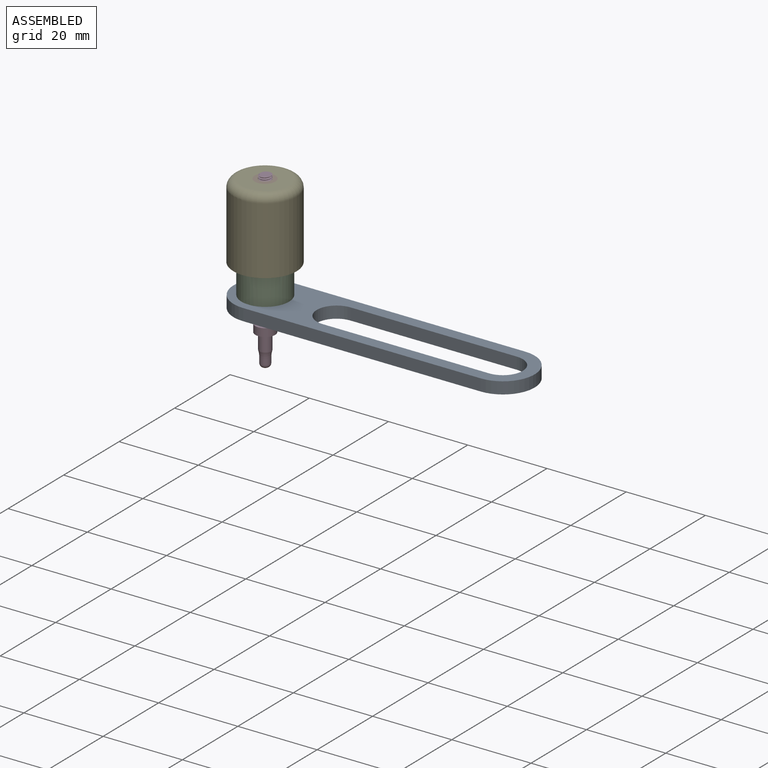
[diagram: assembled view]
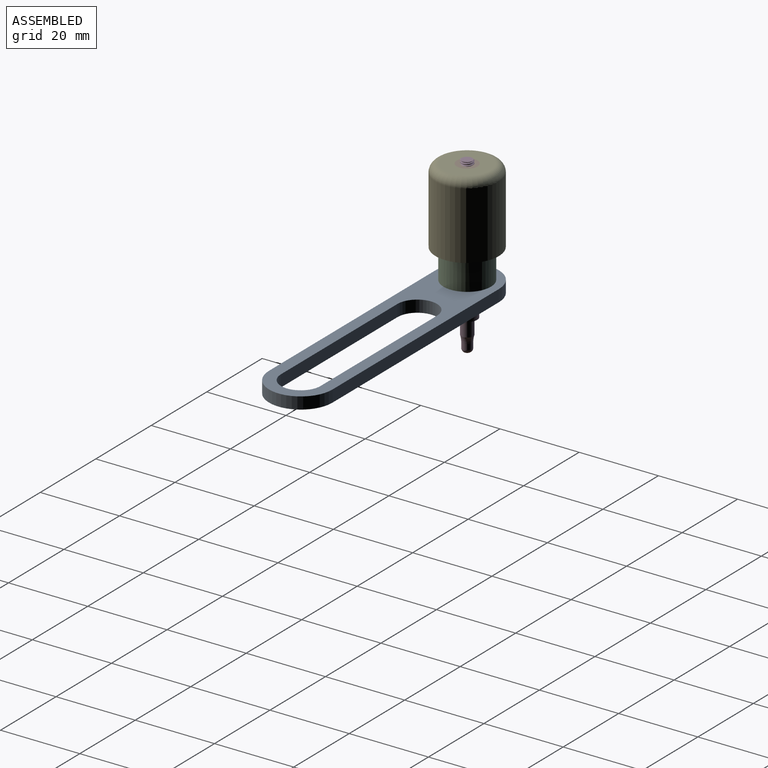
[diagram: assembled view, second angle]
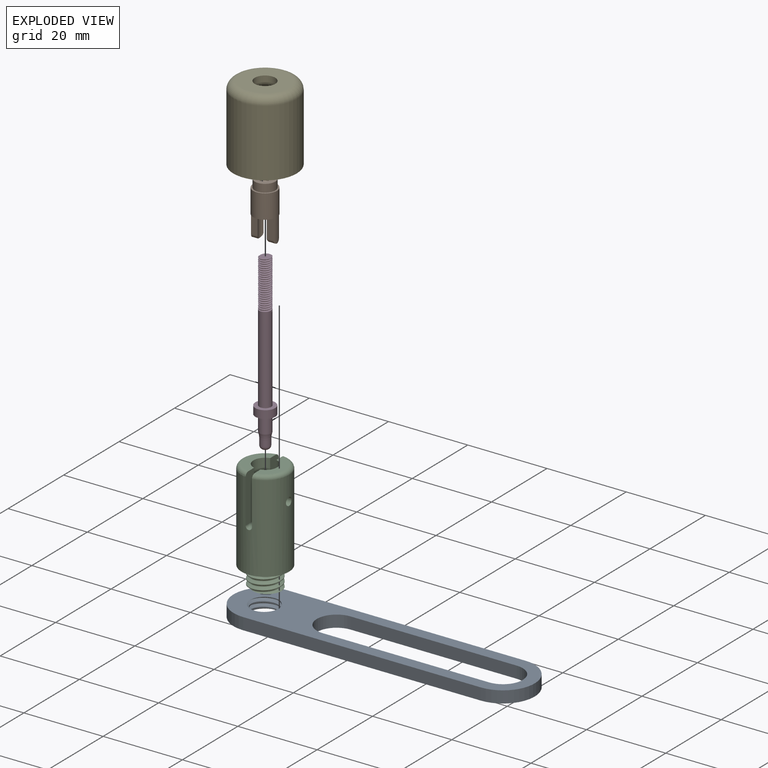
[diagram: exploded view]
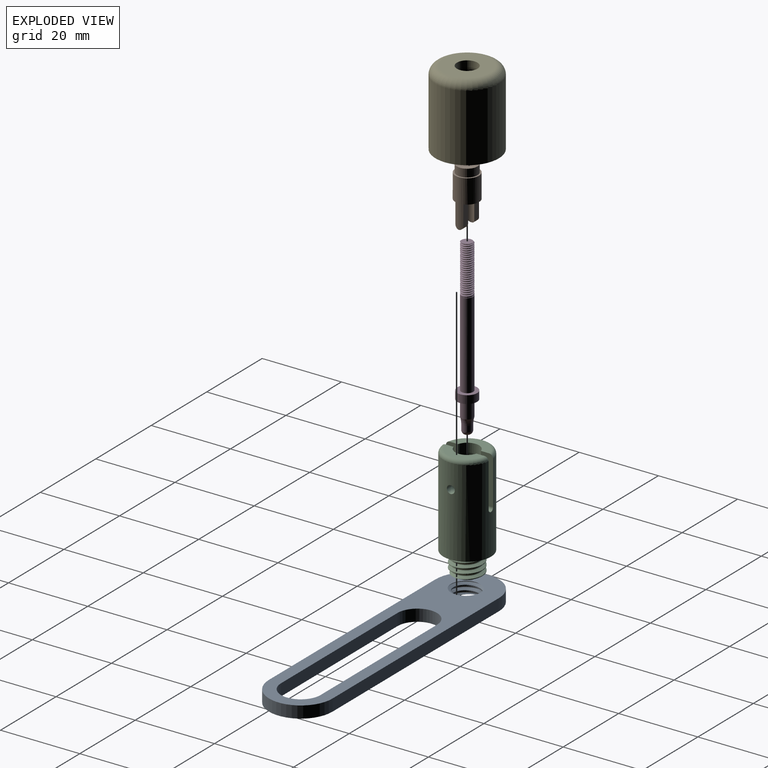
[diagram: exploded view, second angle]
ASSEMBLY  parts=5 mates=4
PART A: 14 faces, bbox 76.4x4.4x16.4 mm
  f0: plane 60x3mm, normal (0,0,-1), area 180mm2, adj f1,f6,f8,f9
  f1: cylinder r=8mm len=16mm, axis (0,1,0), area 75.4mm2, adj f0,f2,f8,f9
  f2: plane 60x3mm, normal (0,0,1), area 180mm2, adj f1,f6,f8,f9
  f3: cylinder r=5mm len=10mm, axis (0,1,0), area 47.1mm2, adj f4,f7,f8,f9
  f4: plane 42x3mm, normal (0,0,-1), area 126mm2, adj f3,f5,f8,f9
  f5: cylinder r=5mm len=10mm, axis (0,1,0), area 47.1mm2, adj f4,f7,f8,f9
  f6: cylinder r=8mm len=16mm, axis (0,1,0), area 75.4mm2, adj f0,f2,f8,f9
  f7: plane 42x3mm, normal (0,0,1), area 126mm2, adj f3,f5,f8,f9
  f8: plane 76.36x16.36mm, normal (0,-1,0), area 619.9mm2, adj f0,f1,f2,f3,f4,f5,f6,f7
  f9: plane 76.36x16.36mm, normal (0,1,0), area 619.9mm2, adj f0,f1,f2,f3,f4,f5,f6,f7
  f10: bspline ~9.36x8.1mm, area 43.8mm2, adj f8,f9,f12,f13
  f11: bspline ~9.36x8.1mm, area 43.7mm2, adj f8,f9,f12,f13
  f12: bspline ~9.49x8.22mm, area 11.1mm2, adj f8,f9,f10,f11
  f13: cylinder r=3.38mm len=6.75mm, axis (0,-1,0), area 15.9mm2, adj f8,f9,f10,f11
PART B: 18 faces, bbox 6.1x6.1x14.4 mm
  f0: cylinder r=3mm len=12mm, axis (0,0,-1), area 136.7mm2, adj f2,f3,f4,f10,f11,f14,f15,f16
  f1: plane 5.34x5.34mm, normal (0,0,1), area 15.3mm2, adj f5,f6,f7,f8,f17
  f2: plane 5x1.72mm, normal (0,-1,0), area 8.6mm2, adj f0,f4,f13,f15
  f3: plane 5x1.7mm, normal (0,1,0), area 8.5mm2, adj f0,f4,f9,f12,f14
  f4: plane 6.14x5.81mm, normal (0,0,-1), area 16.1mm2, adj f0,f2,f3,f5,f6,f7,f8,f10
  f5: bspline ~8.32x3.51mm, area 43.7mm2, adj f1,f4,f7,f8
  f6: bspline ~8.41x3.51mm, area 43.5mm2, adj f1,f4,f7,f8,f9
  f7: bspline ~8.23x3.56mm, area 11.2mm2, adj f1,f4,f5,f6,f9
  f8: cylinder r=1.25mm len=8mm, axis (0,0,1), area 4.9mm2, adj f1,f4,f5,f6
  f9: plane 0.62x0.33mm, normal (0,0,1), area 0mm2, adj f3,f6,f7,f12
  f10: plane 5x1.72mm, normal (0,-1,0), area 8.6mm2, adj f0,f4,f12,f14
  f11: plane 5x1.7mm, normal (0,1,0), area 8.5mm2, adj f0,f4,f13,f15
  f12: cylinder r=1.5mm len=6mm, axis (0,0,1), area 12.6mm2, adj f3,f4,f9,f10,f14
  f13: cylinder r=1.5mm len=6mm, axis (0,0,1), area 12.6mm2, adj f2,f4,f11,f15
  f14: cylinder r=1mm len=2mm, axis (-1,0,0), area 5mm2, adj f0,f3,f10,f12
  f15: cylinder r=1mm len=2mm, axis (1,0,0), area 5mm2, adj f0,f2,f11,f13
  f16: plane 6x6mm, normal (0,0,1), area 7mm2, adj f0,f17
  f17: cylinder r=2.6mm len=5.2mm, axis (0,0,-1), area 32.7mm2, adj f1,f16
PART C: 28 faces, bbox 13.3x13.2x28.9 mm
  f0: cylinder r=6mm len=22mm, axis (0,0,-1), area 787.7mm2, adj f10,f11,f12,f13,f17,f19,f20,f24
  f1: cylinder r=1.5mm len=9mm, axis (0,0,-1), area 62.5mm2, adj f2,f3,f4,f5,f10,f11,f12,f13
  f2: plane 2.03x1.89mm, normal (0,0,1), area 2.5mm2, adj f1,f7,f11,f26
  f3: plane 2.03x1.89mm, normal (0,0,1), area 2.5mm2, adj f1,f7,f12,f26
  f4: plane 2.03x1.89mm, normal (0,0,1), area 2.5mm2, adj f1,f6,f10,f27
  f5: plane 2.03x1.89mm, normal (0,0,1), area 2.5mm2, adj f1,f6,f13,f27
  f6: cylinder r=3mm len=7mm, axis (0,0,-1), area 53.6mm2, adj f4,f5,f9,f10,f13,f27
  f7: cylinder r=3mm len=7mm, axis (0,0,-1), area 53.6mm2, adj f2,f3,f8,f11,f12,f26
  f8: plane 9.87x4.2mm, normal (0,0,1), area 21.9mm2, adj f7,f11,f12,f24
  f9: plane 9.87x4.2mm, normal (0,0,1), area 21.9mm2, adj f6,f10,f13,f25
  f10: plane 12.08x4.75mm, normal (1,0,0), area 44.6mm2, adj f0,f1,f4,f6,f9,f19,f25
  f11: plane 12.07x4.75mm, normal (-1,0,0), area 44.6mm2, adj f0,f1,f2,f7,f8,f19,f24
  f12: plane 12.08x4.75mm, normal (-1,0,0), area 44.6mm2, adj f0,f1,f3,f7,f8,f20,f24
  f13: plane 12.07x4.75mm, normal (1,0,0), area 44.6mm2, adj f0,f1,f5,f6,f9,f20,f25
  f14: cylinder r=2.5mm len=12mm, axis (0,0,-1), area 188.5mm2, adj f16,f18
  f15: cylinder r=4mm len=8mm, axis (0,0,-1), area 17.9mm2, adj f16,f17,f22,f23
  f16: plane 7.62x7.58mm, normal (0,0,-1), area 21.5mm2, adj f14,f15,f21,f22,f23
  f17: plane 12.35x12.35mm, normal (0,0,-1), area 72mm2, adj f0,f15,f21,f22,f23
  f18: plane 5x5mm, normal (0,0,-1), area 12.6mm2, adj f1,f14
  f19: cylinder r=0.8mm len=4.68mm, axis (0,-1,0), area 11.8mm2, adj f0,f1,f10,f11
  f20: cylinder r=0.8mm len=4.68mm, axis (0,-1,0), area 11.8mm2, adj f0,f1,f12,f13
  f21: bspline ~7.68x6.65mm, area 28.9mm2, adj f16,f17,f22,f23
  f22: bspline ~9.24x8mm, area 72mm2, adj f15,f16,f17,f21
  f23: bspline ~9.24x8mm, area 71.9mm2, adj f15,f16,f17,f21
  f24: torus R=5mm, axis (0,0,1), area 25.2mm2, adj f0,f8,f11,f12
  f25: torus R=5mm, axis (0,0,1), area 25.2mm2, adj f0,f9,f10,f13
  f26: cylinder r=1mm len=4.88mm, axis (-1,0,0), area 25mm2, adj f0,f1,f2,f3,f7
  f27: cylinder r=1mm len=4.88mm, axis (-1,0,0), area 25mm2, adj f0,f1,f4,f5,f6
PART D: 41 faces, bbox 6x6x45.4 mm
  f0: cylinder r=1.5mm len=4mm, axis (0,0,-1), area 37.7mm2, adj f3,f7
  f1: cylinder r=1.25mm len=2.5mm, axis (0,0,-1), area 11.3mm2, adj f3,f4
  f2: plane 0.5x0.5mm, normal (0,0,-1), area 0.2mm2, adj f4
  f3: torus R=6.25mm, axis (0,0,1), area 13.3mm2, adj f0,f1
  f4: torus R=0.25mm, axis (0,0,1), area 8.8mm2, adj f1,f2
  f5: cylinder r=2.5mm len=5mm, axis (0,0,-1), area 31.4mm2, adj f6,f7
  f6: plane 5x5mm, normal (0,0,1), area 12.6mm2, adj f5,f9
  f7: plane 5x5mm, normal (0,0,-1), area 12.6mm2, adj f0,f5
  f8: plane 2.85x2.83mm, normal (0,0,1), area 5.7mm2, adj f33,f37,f38,f39
  f9: cylinder r=1.5mm len=22.5mm, axis (0,0,-1), area 206.9mm2, adj f6,f10,f34,f35,f36,f39
  f10: cylinder r=1.5mm len=3mm, axis (0,0,-1), area 0.6mm2, adj f9,f11,f38,f39
  f11: cylinder r=1.5mm len=3mm, axis (0,0,-1), area 0.6mm2, adj f10,f12,f38,f39
  f12: cylinder r=1.5mm len=3mm, axis (0,0,-1), area 0.6mm2, adj f11,f13,f38,f39
  f13: cylinder r=1.5mm len=3mm, axis (0,0,-1), area 0.6mm2, adj f12,f14,f38,f39
  f14: cylinder r=1.5mm len=3mm, axis (0,0,-1), area 0.6mm2, adj f13,f15,f38,f39
  f15: cylinder r=1.5mm len=3mm, axis (0,0,-1), area 0.6mm2, adj f14,f16,f38,f39
  f16: cylinder r=1.5mm len=3mm, axis (0,0,-1), area 0.6mm2, adj f15,f17,f38,f39
  f17: cylinder r=1.5mm len=3mm, axis (0,0,-1), area 0.6mm2, adj f16,f18,f38,f39
  f18: cylinder r=1.5mm len=3mm, axis (0,0,-1), area 0.6mm2, adj f17,f19,f38,f39
  f19: cylinder r=1.5mm len=3mm, axis (0,0,-1), area 0.6mm2, adj f18,f20,f38,f39
  f20: cylinder r=1.5mm len=3mm, axis (0,0,-1), area 0.6mm2, adj f19,f21,f38,f39
  f21: cylinder r=1.5mm len=3mm, axis (0,0,-1), area 0.6mm2, adj f20,f22,f38,f39
  f22: cylinder r=1.5mm len=3mm, axis (0,0,-1), area 0.6mm2, adj f21,f23,f38,f39
  f23: cylinder r=1.5mm len=3mm, axis (0,0,-1), area 0.6mm2, adj f22,f24,f38,f39
  f24: cylinder r=1.5mm len=3mm, axis (0,0,-1), area 0.6mm2, adj f23,f25,f38,f39
  f25: cylinder r=1.5mm len=3mm, axis (0,0,-1), area 0.6mm2, adj f24,f26,f38,f39
  f26: cylinder r=1.5mm len=3mm, axis (0,0,-1), area 0.6mm2, adj f25,f27,f38,f39
  f27: cylinder r=1.5mm len=3mm, axis (0,0,-1), area 0.6mm2, adj f26,f28,f38,f39
  f28: cylinder r=1.5mm len=3mm, axis (0,0,-1), area 0.6mm2, adj f27,f29,f38,f39
  f29: cylinder r=1.5mm len=3mm, axis (0,0,-1), area 0.6mm2, adj f28,f30,f38,f39
  f30: cylinder r=1.5mm len=3mm, axis (0,0,-1), area 0.6mm2, adj f29,f31,f38,f39
  f31: cylinder r=1.5mm len=3mm, axis (0,0,-1), area 0.6mm2, adj f30,f32,f38,f39
  f32: cylinder r=1.5mm len=3mm, axis (0,0,-1), area 0.6mm2, adj f31,f33,f38,f39
  f33: cylinder r=1.5mm len=1.05mm, axis (0,0,-1), area 0mm2, adj f8,f32,f38
  f34: plane 0.15x0.05mm, normal (0,-1,-0.01), area 0mm2, adj f9,f35,f36,f40
  f35: bspline ~3.39x3.28mm, area 1.5mm2, adj f9,f34,f38,f40
  f36: bspline ~3.37x3.25mm, area 1.5mm2, adj f9,f34,f39,f40
  f37: bspline ~12.04x2.84mm, area 25.1mm2, adj f8,f38,f39,f40
  f38: bspline ~11.91x3.46mm, area 62.4mm2, adj f8,f10,f11,f12,f13,f14,f15,f16
  f39: bspline ~12.16x3.46mm, area 64.1mm2, adj f8,f9,f10,f11,f12,f13,f14,f15
  f40: bspline ~2.85x2.73mm, area 1.2mm2, adj f34,f35,f36,f37
PART E: 7 faces, bbox 17.3x17.3x19 mm
  f0: cylinder r=2.6mm len=5.2mm, axis (0,0,-1), area 32.7mm2, adj f1,f2
  f1: plane 12x12mm, normal (0,0,1), area 91.9mm2, adj f0,f3
  f2: plane 12x12mm, normal (0,0,-1), area 91.9mm2, adj f0,f6
  f3: cylinder r=6mm len=17mm, axis (0,0,-1), area 640.9mm2, adj f1,f5
  f4: cylinder r=8mm len=17mm, axis (0,0,-1), area 854.5mm2, adj f5,f6
  f5: plane 16x16mm, normal (0,0,1), area 88mm2, adj f3,f4
  f6: torus R=6mm, axis (0,0,1), area 143.6mm2, adj f2,f4
PLACE A rot(axis=(0,0.71,-0.71),180deg) t=(-24.38,-55.28,5.3)mm
PLACE B rot(axis=(0,0,-1),180deg) t=(-24.42,-55.32,26.79)mm
PLACE C rot(axis=(0,0,-1),180deg) t=(-24.38,-55.28,3.3)mm
PLACE D rot(axis=(0,0,-1),180deg) t=(-24.38,-55.28,-8.21)mm
PLACE E rot(axis=(1,0,0),180deg) t=(-24.42,-55.32,34.79)mm
MATE fastened B.f1 <-> D.f0  axis (0,0,1) through (-24.38,-55.28,34.79)mm
MATE fastened A.f1 <-> C.f14  axis (0,0,1) through (-24.38,-55.28,8.3)mm
MATE slider D.f0 <-> C.f0  axis (0,0,-1) through (-24.38,-55.28,1.79)mm
MATE fastened B.f0 <-> E.f0  axis (0,0,1) through (-24.42,-55.32,32.79)mm
